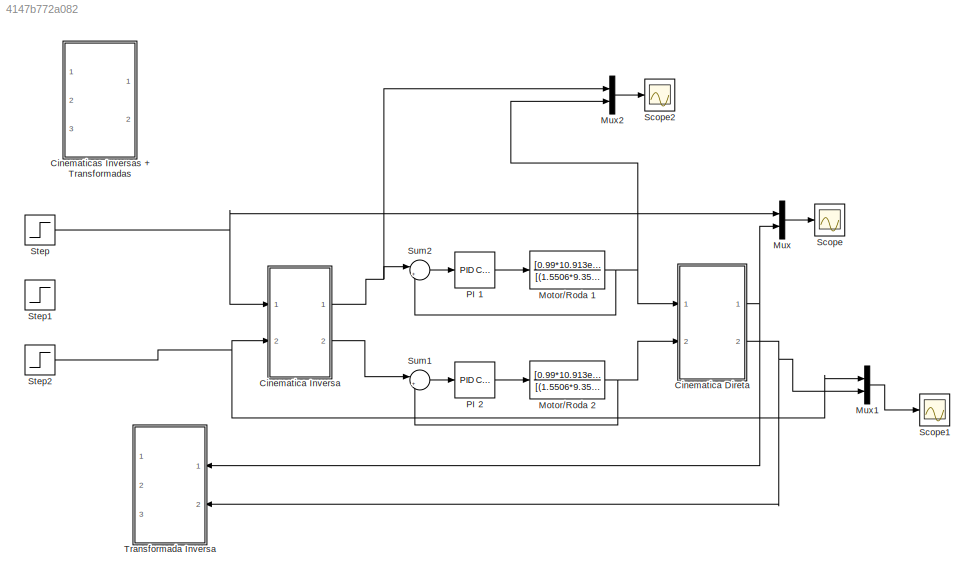
MODEL slx_4147b772a082
KIND model
CONFIG AbsTol = auto
CONFIG EnableMultiTasking = off
CONFIG FixedStep = auto
CONFIG MaxStep = auto
CONFIG MinStep = auto
CONFIG RelTol = 1e-3
CONFIG SampleTimeConstraint = Unconstrained
CONFIG Solver = VariableStepAuto
CONFIG SolverName = VariableStepAuto
CONFIG StartTime = 0.0
CONFIG StopTime = 5
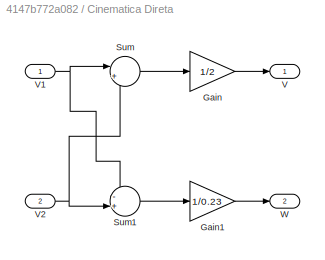
BLOCK [SubSystem] Cinematica Direta
  Ports = [2, 2]
  RequestExecContextInheritance = off
  Variant = off
BLOCK [Gain] Cinematica Direta/Gain
  Gain = 1/2
  OutDataTypeStr = Inherit: Inherit via internal rule
  ParamDataTypeStr = Inherit: Inherit via internal rule
  SaturateOnIntegerOverflow = off
BLOCK [Gain] Cinematica Direta/Gain1
  Gain = 1/0.23
  OutDataTypeStr = Inherit: Inherit via internal rule
  ParamDataTypeStr = Inherit: Inherit via internal rule
  SaturateOnIntegerOverflow = off
BLOCK [Sum] Cinematica Direta/Sum
  IconShape = round
  InputSameDT = off
  Inputs = |++
  OutDataTypeStr = Inherit: Inherit via internal rule
  Ports = [2, 1]
  SaturateOnIntegerOverflow = off
BLOCK [Sum] Cinematica Direta/Sum1
  IconShape = round
  InputSameDT = off
  Inputs = -+|
  OutDataTypeStr = Inherit: Inherit via internal rule
  Ports = [2, 1]
  SaturateOnIntegerOverflow = off
BLOCK [Outport] Cinematica Direta/V
  IconDisplay = Port number
BLOCK [Inport] Cinematica Direta/V1
  IconDisplay = Port number
BLOCK [Inport] Cinematica Direta/V2
  IconDisplay = Port number
  Port = 2
BLOCK [Outport] Cinematica Direta/W
  IconDisplay = Port number
  Port = 2
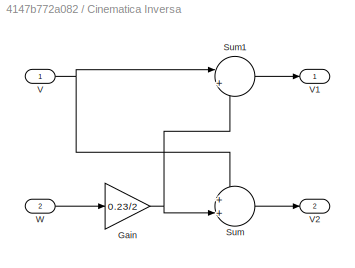
BLOCK [SubSystem] Cinematica Inversa
  Ports = [2, 2]
  RequestExecContextInheritance = off
  Variant = off
BLOCK [Gain] Cinematica Inversa/Gain
  Gain = 0.23/2
  OutDataTypeStr = Inherit: Inherit via internal rule
  ParamDataTypeStr = Inherit: Inherit via internal rule
  SaturateOnIntegerOverflow = off
BLOCK [Sum] Cinematica Inversa/Sum
  IconShape = round
  InputSameDT = off
  Inputs = ++|
  OutDataTypeStr = Inherit: Inherit via internal rule
  Ports = [2, 1]
  SaturateOnIntegerOverflow = off
BLOCK [Sum] Cinematica Inversa/Sum1
  IconShape = round
  InputSameDT = off
  Inputs = |+-
  OutDataTypeStr = Inherit: Inherit via internal rule
  Ports = [2, 1]
  SaturateOnIntegerOverflow = off
BLOCK [Inport] Cinematica Inversa/V
  IconDisplay = Port number
BLOCK [Outport] Cinematica Inversa/V1
  IconDisplay = Port number
BLOCK [Outport] Cinematica Inversa/V2
  IconDisplay = Port number
  Port = 2
BLOCK [Inport] Cinematica Inversa/W
  IconDisplay = Port number
  Port = 2
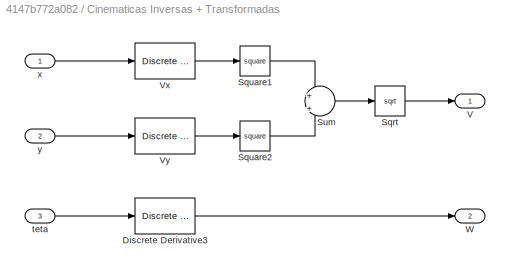
BLOCK [SubSystem] Cinematicas Inversas + Transformadas
  Ports = [3, 2]
  RequestExecContextInheritance = off
  Variant = off
BLOCK [Reference] Cinematicas Inversas + Transformadas/Discrete Derivative3  REF=simulink/Discrete/Discrete Derivative
  Ports = [1, 1]
  SourceBlock = simulink/Discrete/Discrete Derivative
  SourceProductBaseCode = SL
  SourceProductName = Simulink
  SourceType = Discrete Derivative
BLOCK [Sqrt] Cinematicas Inversas + Transformadas/Sqrt
BLOCK [Math] Cinematicas Inversas + Transformadas/Square1
  Operator = square
  Ports = [1, 1]
  RndMeth = Zero
BLOCK [Math] Cinematicas Inversas + Transformadas/Square2
  Operator = square
  Ports = [1, 1]
  RndMeth = Zero
BLOCK [Sum] Cinematicas Inversas + Transformadas/Sum
  IconShape = round
  InputSameDT = off
  Inputs = +|+
  OutDataTypeStr = Inherit: Inherit via internal rule
  Ports = [2, 1]
  SaturateOnIntegerOverflow = off
BLOCK [Outport] Cinematicas Inversas + Transformadas/V
  IconDisplay = Port number
BLOCK [Reference] Cinematicas Inversas + Transformadas/Vx  REF=simulink/Discrete/Discrete Derivative
  Ports = [1, 1]
  SourceBlock = simulink/Discrete/Discrete Derivative
  SourceProductBaseCode = SL
  SourceProductName = Simulink
  SourceType = Discrete Derivative
BLOCK [Reference] Cinematicas Inversas + Transformadas/Vy  REF=simulink/Discrete/Discrete Derivative
  Ports = [1, 1]
  SourceBlock = simulink/Discrete/Discrete Derivative
  SourceProductBaseCode = SL
  SourceProductName = Simulink
  SourceType = Discrete Derivative
BLOCK [Outport] Cinematicas Inversas + Transformadas/W
  IconDisplay = Port number
  Port = 2
BLOCK [Inport] Cinematicas Inversas + Transformadas/teta
  IconDisplay = Port number
  Port = 3
BLOCK [Inport] Cinematicas Inversas + Transformadas/x
  IconDisplay = Port number
BLOCK [Inport] Cinematicas Inversas + Transformadas/y
  IconDisplay = Port number
  Port = 2
BLOCK [TransferFcn] Motor//Roda 1
  Denominator = [(1.5506*9.35604e-3) (10.913e-3)*11.518e-3]
  Numerator = [0.99*10.913e-3]
BLOCK [TransferFcn] Motor//Roda 2
  Denominator = [(1.5506*9.35604e-3) (10.913e-3)*11.518e-3]
  Numerator = [0.99*10.913e-3]
BLOCK [Mux] Mux
  DisplayOption = bar
  Inputs = 2
  Ports = [2, 1]
BLOCK [Mux] Mux1
  DisplayOption = bar
  Inputs = 2
  Ports = [2, 1]
BLOCK [Mux] Mux2
  DisplayOption = bar
  Inputs = 2
  Ports = [2, 1]
BLOCK [Reference] PI 1  REF=simulink/Continuous/PID Controller
  Ports = [1, 1]
  SourceBlock = simulink/Continuous/PID Controller
  SourceProductBaseCode = SL
  SourceProductName = Simulink
  SourceType = PID 1dof
BLOCK [Reference] PI 2  REF=simulink/Continuous/PID Controller
  Ports = [1, 1]
  SourceBlock = simulink/Continuous/PID Controller
  SourceProductBaseCode = SL
  SourceProductName = Simulink
  SourceType = PID 1dof
BLOCK [Scope] Scope
  NumInputPorts = 1
  Ports = [1]
  ScopeSpecificationString = Simulink.scopes.TimeScopeBlockCfg('CurrentConfiguration', extmgr.ConfigurationSet(extmgr.Configuration('Core','General UI',true),extmgr.Configuration('Core','Source UI',true),extmgr.Configuration('Sources','WiredSimulink',true),extmgr.Configuration('Visuals','Time Domain',true,'SerializedDisplays',{struct('MinYLimReal','-0.63617','MaxYLimReal','5.72555','YLabelReal','','MinYLimMag','0.00000','MaxY...<+1374ch>
BLOCK [Scope] Scope1
  NumInputPorts = 1
  Ports = [1]
  ScopeSpecificationString = Simulink.scopes.TimeScopeBlockCfg('CurrentConfiguration', extmgr.ConfigurationSet(extmgr.Configuration('Core','General UI',true),extmgr.Configuration('Core','Source UI',true),extmgr.Configuration('Sources','WiredSimulink',true,'DataLoggingVariableName','ScopeData1'),extmgr.Configuration('Visuals','Time Domain',true,'SerializedDisplays',{struct('MinYLimReal','-0.19085','MaxYLimReal','1.71767','YLab...<+1386ch>
BLOCK [Scope] Scope2
  NumInputPorts = 1
  Ports = [1]
  ScopeSpecificationString = Simulink.scopes.TimeScopeBlockCfg('CurrentConfiguration', extmgr.ConfigurationSet(extmgr.Configuration('Core','General UI',true),extmgr.Configuration('Core','Source UI',true),extmgr.Configuration('Sources','WiredSimulink',true,'DataLoggingVariableName','ScopeData1'),extmgr.Configuration('Visuals','Time Domain',true,'SerializedDisplays',{struct('MinYLimReal','-0.61422','MaxYLimReal','5.52802','YLab...<+1422ch>
BLOCK [Step] Step
  After = 5
  SampleTime = 0
  Time = 0
BLOCK [Step] Step1
  After = 3
  SampleTime = 0
  Time = 0
BLOCK [Step] Step2
  After = 1.5
  SampleTime = 0
  Time = 0
BLOCK [Sum] Sum1
  IconShape = round
  InputSameDT = off
  Inputs = |+-
  OutDataTypeStr = Inherit: Inherit via internal rule
  Ports = [2, 1]
  SaturateOnIntegerOverflow = off
BLOCK [Sum] Sum2
  IconShape = round
  InputSameDT = off
  Inputs = |+-
  OutDataTypeStr = Inherit: Inherit via internal rule
  Ports = [2, 1]
  SaturateOnIntegerOverflow = off
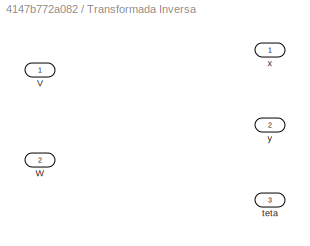
BLOCK [SubSystem] Transformada Inversa
  Ports = [2, 3]
  RequestExecContextInheritance = off
  Variant = off
BLOCK [Inport] Transformada Inversa/V
  IconDisplay = Port number
BLOCK [Inport] Transformada Inversa/W
  IconDisplay = Port number
  Port = 2
BLOCK [Outport] Transformada Inversa/teta
  IconDisplay = Port number
  Port = 3
BLOCK [Outport] Transformada Inversa/x
  IconDisplay = Port number
BLOCK [Outport] Transformada Inversa/y
  IconDisplay = Port number
  Port = 2
LINE Cinematica Direta/Gain1:1 -> Cinematica Direta/W:1
LINE Cinematica Direta/Gain:1 -> Cinematica Direta/V:1
LINE Cinematica Direta/Sum1:1 -> Cinematica Direta/Gain1:1
LINE Cinematica Direta/Sum:1 -> Cinematica Direta/Gain:1
NET Cinematica Direta/V1:1 -> Cinematica Direta/Sum1:1, Cinematica Direta/Sum:1
NET Cinematica Direta/V2:1 -> Cinematica Direta/Sum1:2, Cinematica Direta/Sum:2
NET Cinematica Direta:1 -> Mux:2, Transformada Inversa:1
NET Cinematica Direta:2 -> Mux1:2, Transformada Inversa:2
NET Cinematica Inversa/Gain:1 -> Cinematica Inversa/Sum1:2, Cinematica Inversa/Sum:2
LINE Cinematica Inversa/Sum1:1 -> Cinematica Inversa/V1:1
LINE Cinematica Inversa/Sum:1 -> Cinematica Inversa/V2:1
NET Cinematica Inversa/V:1 -> Cinematica Inversa/Sum1:1, Cinematica Inversa/Sum:1
LINE Cinematica Inversa/W:1 -> Cinematica Inversa/Gain:1
NET Cinematica Inversa:1 -> Mux2:1, Sum2:1
LINE Cinematica Inversa:2 -> Sum1:1
LINE Cinematicas Inversas + Transformadas/Discrete Derivative3:1 -> Cinematicas Inversas + Transformadas/W:1
LINE Cinematicas Inversas + Transformadas/Sqrt:1 -> Cinematicas Inversas + Transformadas/V:1
LINE Cinematicas Inversas + Transformadas/Square1:1 -> Cinematicas Inversas + Transformadas/Sum:1
LINE Cinematicas Inversas + Transformadas/Square2:1 -> Cinematicas Inversas + Transformadas/Sum:2
LINE Cinematicas Inversas + Transformadas/Sum:1 -> Cinematicas Inversas + Transformadas/Sqrt:1
LINE Cinematicas Inversas + Transformadas/Vx:1 -> Cinematicas Inversas + Transformadas/Square1:1
LINE Cinematicas Inversas + Transformadas/Vy:1 -> Cinematicas Inversas + Transformadas/Square2:1
LINE Cinematicas Inversas + Transformadas/teta:1 -> Cinematicas Inversas + Transformadas/Discrete Derivative3:1
LINE Cinematicas Inversas + Transformadas/x:1 -> Cinematicas Inversas + Transformadas/Vx:1
LINE Cinematicas Inversas + Transformadas/y:1 -> Cinematicas Inversas + Transformadas/Vy:1
NET Motor//Roda 1:1 -> Cinematica Direta:1, Mux2:2, Sum2:2
NET Motor//Roda 2:1 -> Cinematica Direta:2, Sum1:2
LINE Mux1:1 -> Scope1:1
LINE Mux2:1 -> Scope2:1
LINE Mux:1 -> Scope:1
LINE PI 1:1 -> Motor//Roda 1:1
LINE PI 2:1 -> Motor//Roda 2:1
NET Step2:1 -> Cinematica Inversa:2, Mux1:1
NET Step:1 -> Cinematica Inversa:1, Mux:1
LINE Sum1:1 -> PI 2:1
LINE Sum2:1 -> PI 1:1
note: NET lines group one-source signal fan-out (src -> all destinations, sorted); 1:1 wires keep LINE
